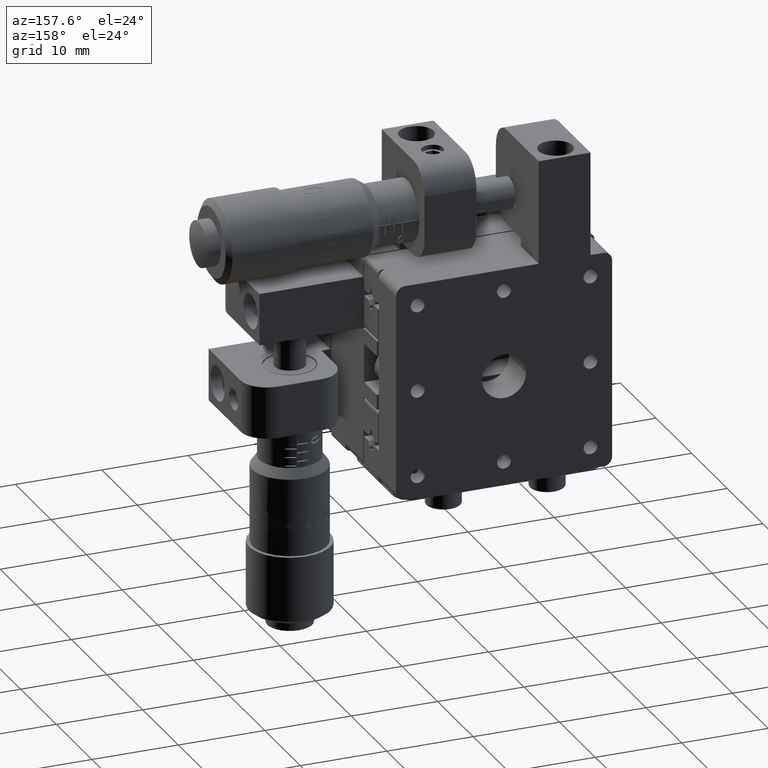
[diagram: clean part render]
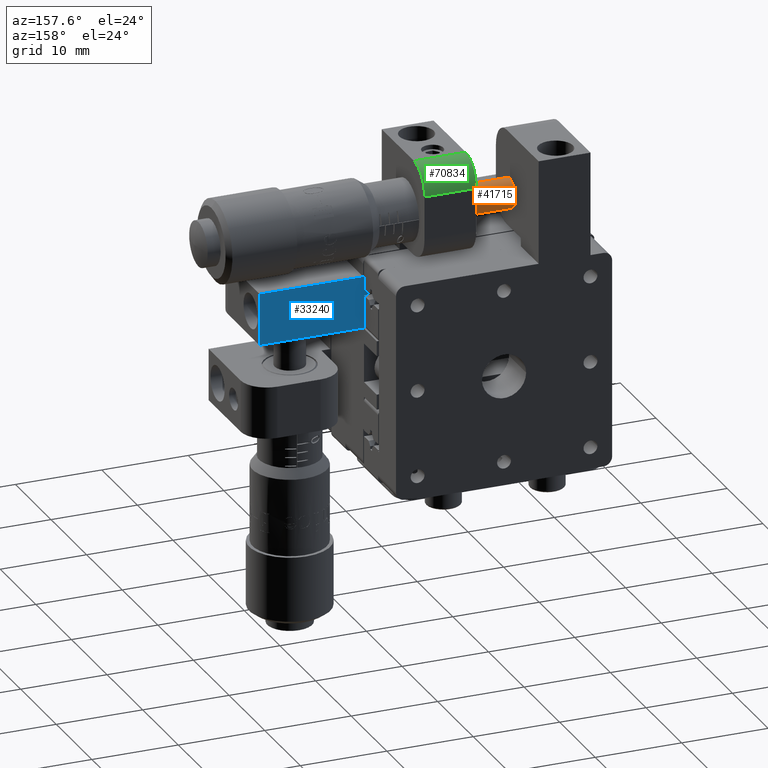
[diagram: same view with three faces highlighted in distinct colors, each labeled with its STEP entity id]
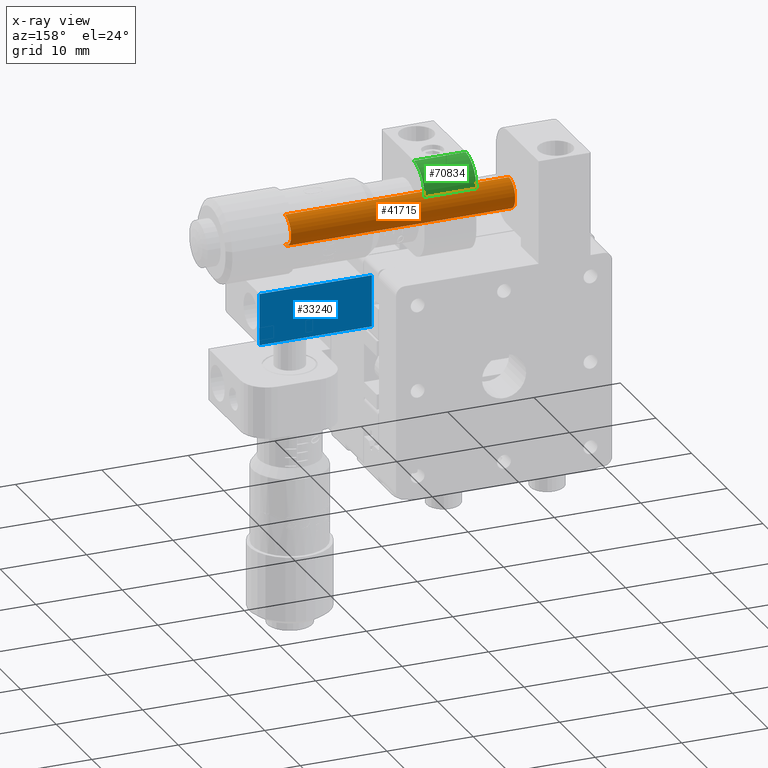
[diagram: x-ray of the same camera — body ghosted, the three highlighted faces saturated]
A machine part, auxiliary view with three faces highlighted in distinct colors.
The next image is the same camera in x-ray (body ghosted, the three faces saturated) — at least one of them is partly hidden behind the body in this view.
Their STEP definitions:

[orange] entity #41715 — the highlighted cylindrical surface (edge-blend (fillet) strip) has radius 1.75 mm, axis along (1, 0, 0).
#2085 = VECTOR ( 'NONE', #65509, 1000.000000000000000 ) ;
#4926 = EDGE_CURVE ( 'NONE', #81972, #60029, #91476, .T. ) ;
#8649 = LINE ( 'NONE', #76306, #80676 ) ;
#10486 = ORIENTED_EDGE ( 'NONE', *, *, #30579, .T. ) ;
#14526 = DIRECTION ( 'NONE',  ( 1.000000000000000000, 2.449293598294720200E-016, 1.198260150553028700E-016 ) ) ;
#15134 = CIRCLE ( 'NONE', #35318, 1.750000000000001800 ) ;
#16377 = ORIENTED_EDGE ( 'NONE', *, *, #52986, .F. ) ;
#20918 = VERTEX_POINT ( 'NONE', #41631 ) ;
#24489 = CARTESIAN_POINT ( 'NONE',  ( -3.536698586202194700, 7.172563481398877400, 19.74978491176691600 ) ) ;
#28124 = DIRECTION ( 'NONE',  ( 0.0000000000000000000, 0.01567801062920006600, -0.9998770924382209800 ) ) ;
#28450 = DIRECTION ( 'NONE',  ( 1.000000000000000000, 2.449293598294720200E-016, 1.198260150553028700E-016 ) ) ;
#28568 = DIRECTION ( 'NONE',  ( 0.0000000000000000000, 0.01567801062920006600, -0.9998770924382209800 ) ) ;
#30579 = EDGE_CURVE ( 'NONE', #20918, #31884, #15134, .T. ) ;
#31543 = CARTESIAN_POINT ( 'NONE',  ( 22.40000000000004800, 7.227436518601081200, 16.25021508823319700 ) ) ;
#31884 = VERTEX_POINT ( 'NONE', #31543 ) ;
#33143 = FACE_OUTER_BOUND ( 'NONE', #71266, .T. ) ;
#35318 = AXIS2_PLACEMENT_3D ( 'NONE', #40048, #84810, #91971 ) ;
#35478 = ORIENTED_EDGE ( 'NONE', *, *, #89715, .T. ) ;
#40048 = CARTESIAN_POINT ( 'NONE',  ( 22.40000000000004800, 7.199999999999994800, 18.00000000000008500 ) ) ;
#41631 = CARTESIAN_POINT ( 'NONE',  ( 22.40000000000004800, 7.172563481398882800, 19.74978491176697300 ) ) ;
#41715 = ADVANCED_FACE ( 'NONE', ( #33143 ), #67899, .T. ) ;
#48091 = AXIS2_PLACEMENT_3D ( 'NONE', #96012, #14526, #28568 ) ;
#51185 = ORIENTED_EDGE ( 'NONE', *, *, #4926, .T. ) ;
#52986 = EDGE_CURVE ( 'NONE', #81972, #31884, #83457, .T. ) ;
#54303 = DIRECTION ( 'NONE',  ( 1.000000000000000000, 2.449293598294720200E-016, 1.198260150553028700E-016 ) ) ;
#60029 = VERTEX_POINT ( 'NONE', #24489 ) ;
#65509 = DIRECTION ( 'NONE',  ( 1.000000000000000000, 2.449293598294720200E-016, 1.198260150553028700E-016 ) ) ;
#67899 = CYLINDRICAL_SURFACE ( 'NONE', #86298, 1.749999999999994900 ) ;
#71266 = EDGE_LOOP ( 'NONE', ( #51185, #35478, #10486, #16377 ) ) ;
#76306 = CARTESIAN_POINT ( 'NONE',  ( 66.94102306920754600, 7.172563481398896100, 19.74978491176696900 ) ) ;
#79474 = CARTESIAN_POINT ( 'NONE',  ( 66.94102306920754600, 7.227436518601095400, 16.25021508823320800 ) ) ;
#80676 = VECTOR ( 'NONE', #54303, 1000.000000000000000 ) ;
#81972 = VERTEX_POINT ( 'NONE', #85254 ) ;
#83457 = LINE ( 'NONE', #79474, #2085 ) ;
#84810 = DIRECTION ( 'NONE',  ( -1.000000000000000000, -2.449293598294720200E-016, -1.198260150553028700E-016 ) ) ;
#85254 = CARTESIAN_POINT ( 'NONE',  ( -3.536698586202194700, 7.227436518601077600, 16.25021508823315800 ) ) ;
#86298 = AXIS2_PLACEMENT_3D ( 'NONE', #87501, #28450, #28124 ) ;
#87501 = CARTESIAN_POINT ( 'NONE',  ( 66.94102306920754600, 7.199999999999995700, 18.00000000000008900 ) ) ;
#89715 = EDGE_CURVE ( 'NONE', #60029, #20918, #8649, .T. ) ;
#91476 = CIRCLE ( 'NONE', #48091, 1.749999999999994900 ) ;
#91971 = DIRECTION ( 'NONE',  ( 0.0000000000000000000, -0.01567801062920000700, 0.9998770924382209800 ) ) ;
#96012 = CARTESIAN_POINT ( 'NONE',  ( -3.536698586202194700, 7.199999999999982400, 18.00000000000003600 ) ) ;

[blue] entity #33240 — the highlighted planar face has unit normal (-0, -1, 0).
#503 = AXIS2_PLACEMENT_3D ( 'NONE', #30926, #22113, #14944 ) ;
#761 = DIRECTION ( 'NONE',  ( 1.224530623948996600E-016, 1.717376241217014400E-016, 1.000000000000000000 ) ) ;
#921 = DIRECTION ( 'NONE',  ( 1.000000000000000000, -1.351270799773932400E-016, -1.224530623949039900E-016 ) ) ;
#3781 = CARTESIAN_POINT ( 'NONE',  ( 11.50000000000004100, 5.200000000000030400, 3.999999999999984500 ) ) ;
#4675 = VERTEX_POINT ( 'NONE', #70987 ) ;
#7445 = EDGE_LOOP ( 'NONE', ( #66535, #92633, #78459, #58747 ) ) ;
#14944 = DIRECTION ( 'NONE',  ( -1.000000000000000000, 1.351270799773932200E-016, 1.224530623949039900E-016 ) ) ;
#17191 = EDGE_CURVE ( 'NONE', #71870, #70120, #86985, .T. ) ;
#21593 = CARTESIAN_POINT ( 'NONE',  ( 24.50000000000005700, 5.200000000000030400, 3.999999999999983600 ) ) ;
#22113 = DIRECTION ( 'NONE',  ( -1.351270799773931900E-016, -1.000000000000000000, 1.717376241217034100E-016 ) ) ;
#26205 = EDGE_CURVE ( 'NONE', #71870, #56382, #62968, .T. ) ;
#28762 = VECTOR ( 'NONE', #36525, 1000.000000000000000 ) ;
#30926 = CARTESIAN_POINT ( 'NONE',  ( 24.50000000000005700, 5.200000000000030400, 3.999999999999983600 ) ) ;
#33240 = ADVANCED_FACE ( 'NONE', ( #82125 ), #66860, .F. ) ;
#36525 = DIRECTION ( 'NONE',  ( 1.000000000000000000, -1.351270799773932400E-016, -1.224530623949039900E-016 ) ) ;
#37589 = CARTESIAN_POINT ( 'NONE',  ( 24.50000000000005700, 5.200000000000030400, 3.999999999999983600 ) ) ;
#37803 = CARTESIAN_POINT ( 'NONE',  ( 24.50000000000005700, 5.200000000000032200, 10.00000000000000200 ) ) ;
#43741 = LINE ( 'NONE', #37589, #77359 ) ;
#46331 = CARTESIAN_POINT ( 'NONE',  ( 11.50000000000004100, 5.200000000000035700, 10.00000000000000200 ) ) ;
#56382 = VERTEX_POINT ( 'NONE', #46331 ) ;
#57411 = DIRECTION ( 'NONE',  ( 1.224530623948996600E-016, 1.717376241217014400E-016, 1.000000000000000000 ) ) ;
#58747 = ORIENTED_EDGE ( 'NONE', *, *, #26205, .T. ) ;
#61220 = LINE ( 'NONE', #37803, #28762 ) ;
#62968 = LINE ( 'NONE', #63548, #89792 ) ;
#63548 = CARTESIAN_POINT ( 'NONE',  ( 11.50000000000004100, 5.200000000000030400, 3.999999999999984500 ) ) ;
#66535 = ORIENTED_EDGE ( 'NONE', *, *, #74950, .T. ) ;
#66860 = PLANE ( 'NONE',  #503 ) ;
#67477 = CARTESIAN_POINT ( 'NONE',  ( 24.50000000000005700, 5.200000000000030400, 3.999999999999983600 ) ) ;
#70120 = VERTEX_POINT ( 'NONE', #21593 ) ;
#70683 = VECTOR ( 'NONE', #921, 1000.000000000000000 ) ;
#70987 = CARTESIAN_POINT ( 'NONE',  ( 24.50000000000005700, 5.200000000000032200, 10.00000000000000200 ) ) ;
#71870 = VERTEX_POINT ( 'NONE', #3781 ) ;
#74950 = EDGE_CURVE ( 'NONE', #56382, #4675, #61220, .T. ) ;
#77359 = VECTOR ( 'NONE', #761, 1000.000000000000000 ) ;
#78459 = ORIENTED_EDGE ( 'NONE', *, *, #17191, .F. ) ;
#82125 = FACE_OUTER_BOUND ( 'NONE', #7445, .T. ) ;
#86985 = LINE ( 'NONE', #67477, #70683 ) ;
#88509 = EDGE_CURVE ( 'NONE', #70120, #4675, #43741, .T. ) ;
#89792 = VECTOR ( 'NONE', #57411, 1000.000000000000000 ) ;
#92633 = ORIENTED_EDGE ( 'NONE', *, *, #88509, .F. ) ;

[green] entity #70834 — the highlighted cylindrical surface (edge-blend (fillet) strip) has radius 3 mm, axis along (1, 0, 0).
#2455 = ORIENTED_EDGE ( 'NONE', *, *, #7653, .F. ) ;
#2760 = DIRECTION ( 'NONE',  ( 1.445602896647339700E-016, 0.0000000000000000000, -1.000000000000000000 ) ) ;
#2832 = DIRECTION ( 'NONE',  ( -1.000000000000000000, -3.029783534885640500E-032, -1.198260150552996900E-016 ) ) ;
#7653 = EDGE_CURVE ( 'NONE', #60360, #8678, #47594, .T. ) ;
#8678 = VERTEX_POINT ( 'NONE', #66788 ) ;
#10312 = VERTEX_POINT ( 'NONE', #81602 ) ;
#14908 = DIRECTION ( 'NONE',  ( 0.0000000000000000000, 0.0000000000000000000, 1.000000000000000000 ) ) ;
#19903 = CARTESIAN_POINT ( 'NONE',  ( 2.300000000000047300, 9.199999999999999300, 21.49999999999999600 ) ) ;
#20333 = AXIS2_PLACEMENT_3D ( 'NONE', #89309, #43852, #14908 ) ;
#24295 = CARTESIAN_POINT ( 'NONE',  ( 2.300000000000047300, 12.20000000000003700, 21.49999999999999600 ) ) ;
#25488 = VECTOR ( 'NONE', #69015, 1000.000000000000000 ) ;
#27699 = EDGE_CURVE ( 'NONE', #79887, #10312, #31039, .T. ) ;
#31039 = LINE ( 'NONE', #39937, #62228 ) ;
#31468 = FACE_OUTER_BOUND ( 'NONE', #58764, .T. ) ;
#33045 = CARTESIAN_POINT ( 'NONE',  ( 2.300000000000047300, 9.199999999999999300, 21.49999999999999600 ) ) ;
#39937 = CARTESIAN_POINT ( 'NONE',  ( 2.300000000000046900, 9.199999999999999300, 24.49999999999999300 ) ) ;
#43852 = DIRECTION ( 'NONE',  ( 1.000000000000000000, 3.029783534885640500E-032, 1.198260150552996900E-016 ) ) ;
#45942 = ORIENTED_EDGE ( 'NONE', *, *, #47898, .F. ) ;
#47594 = LINE ( 'NONE', #24295, #25488 ) ;
#47898 = EDGE_CURVE ( 'NONE', #10312, #60360, #65407, .T. ) ;
#47958 = DIRECTION ( 'NONE',  ( 1.000000000000000000, 3.029783534885640500E-032, 1.198260150552996900E-016 ) ) ;
#52207 = ORIENTED_EDGE ( 'NONE', *, *, #27699, .F. ) ;
#56648 = DIRECTION ( 'NONE',  ( -1.000000000000000000, -3.029783534885640500E-032, -1.198260150552996900E-016 ) ) ;
#57279 = DIRECTION ( 'NONE',  ( -1.445602896647339700E-016, 0.0000000000000000000, 1.000000000000000000 ) ) ;
#57890 = EDGE_CURVE ( 'NONE', #8678, #79887, #75388, .T. ) ;
#58764 = EDGE_LOOP ( 'NONE', ( #45942, #52207, #81772, #2455 ) ) ;
#60360 = VERTEX_POINT ( 'NONE', #87757 ) ;
#62228 = VECTOR ( 'NONE', #2832, 1000.000000000000000 ) ;
#65407 = CIRCLE ( 'NONE', #87908, 2.999999999999999100 ) ;
#66788 = CARTESIAN_POINT ( 'NONE',  ( 8.300000000000061100, 12.20000000000003700, 21.49999999999999600 ) ) ;
#69015 = DIRECTION ( 'NONE',  ( 1.000000000000000000, 3.029783534885640500E-032, 1.198260150552996900E-016 ) ) ;
#70834 = ADVANCED_FACE ( 'NONE', ( #31468 ), #91853, .T. ) ;
#75388 = CIRCLE ( 'NONE', #20333, 2.999999999999999100 ) ;
#78445 = CARTESIAN_POINT ( 'NONE',  ( 8.300000000000087800, 9.199999999999999300, 24.49999999999999300 ) ) ;
#79632 = AXIS2_PLACEMENT_3D ( 'NONE', #33045, #47958, #2760 ) ;
#79887 = VERTEX_POINT ( 'NONE', #78445 ) ;
#81602 = CARTESIAN_POINT ( 'NONE',  ( 2.300000000000046900, 9.199999999999999300, 24.49999999999999300 ) ) ;
#81772 = ORIENTED_EDGE ( 'NONE', *, *, #57890, .F. ) ;
#87757 = CARTESIAN_POINT ( 'NONE',  ( 2.300000000000047300, 12.20000000000003700, 21.49999999999999600 ) ) ;
#87908 = AXIS2_PLACEMENT_3D ( 'NONE', #19903, #56648, #57279 ) ;
#89309 = CARTESIAN_POINT ( 'NONE',  ( 8.300000000000061100, 9.199999999999999300, 21.49999999999999600 ) ) ;
#91853 = CYLINDRICAL_SURFACE ( 'NONE', #79632, 2.999999999999999100 ) ;